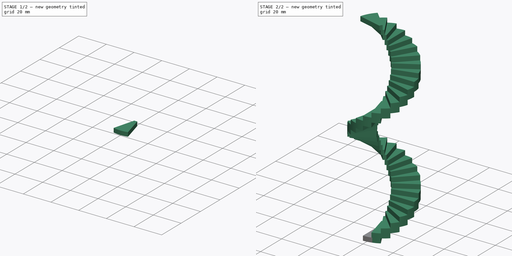
[diagram: build sequence overview — one tinted view per stage of 2, left to right]
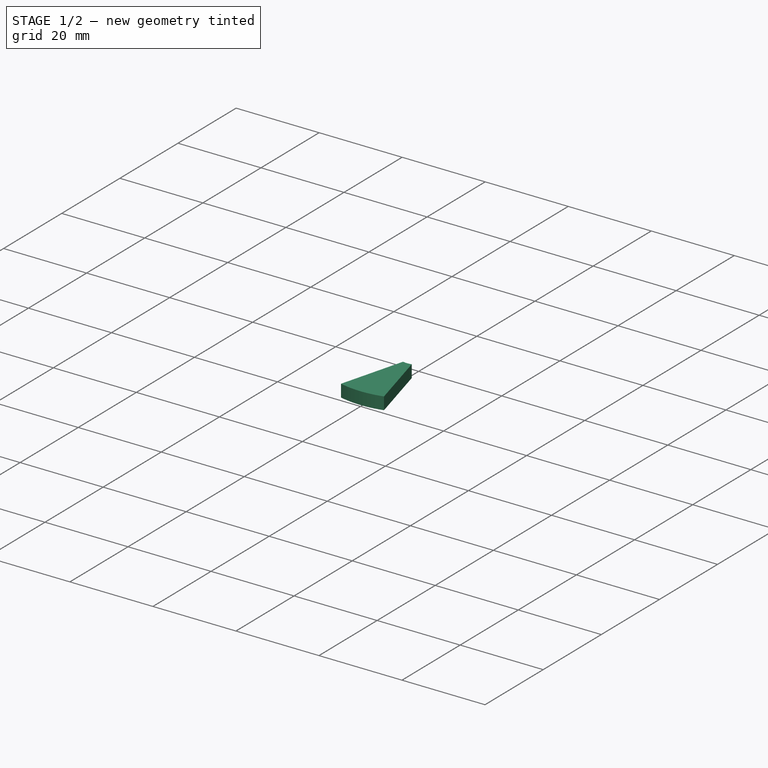
[diagram: stage 1 of 2 — iso view after this stage's code; geometry added in this stage tinted green]
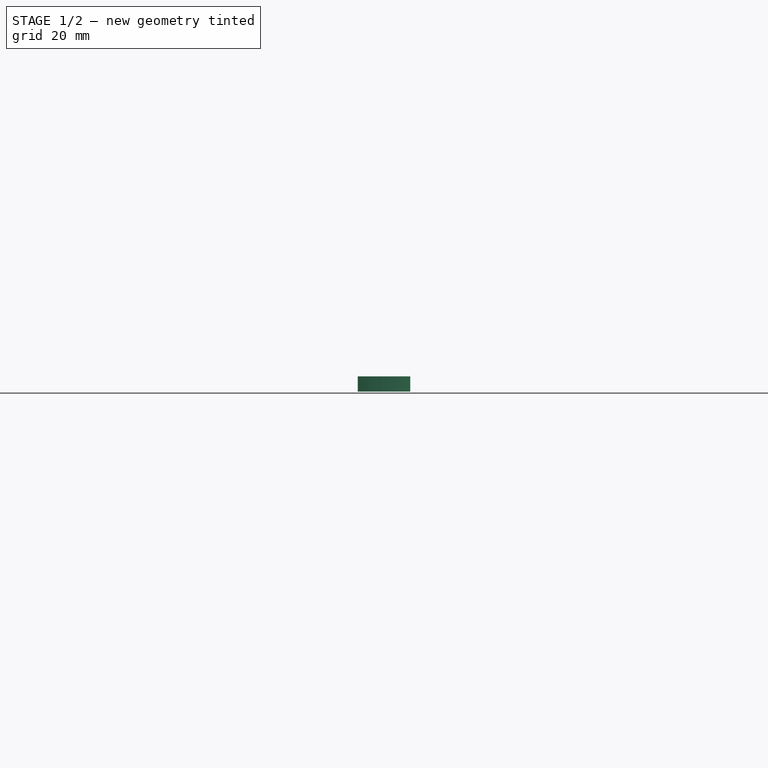
[diagram: stage 1 of 2 — front view after this stage's code; geometry added in this stage tinted green]
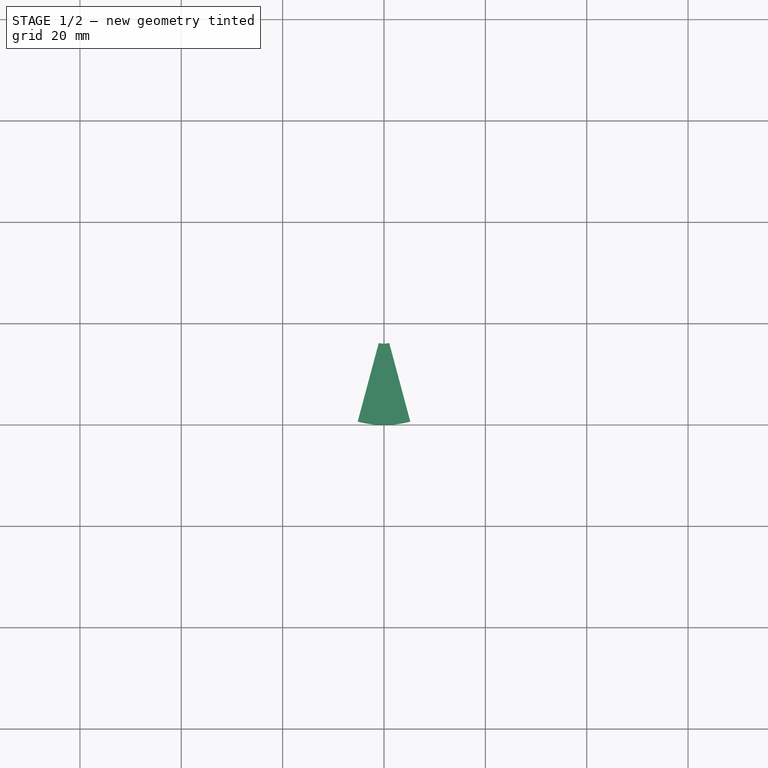
[diagram: stage 1 of 2 — top view after this stage's code; geometry added in this stage tinted green]
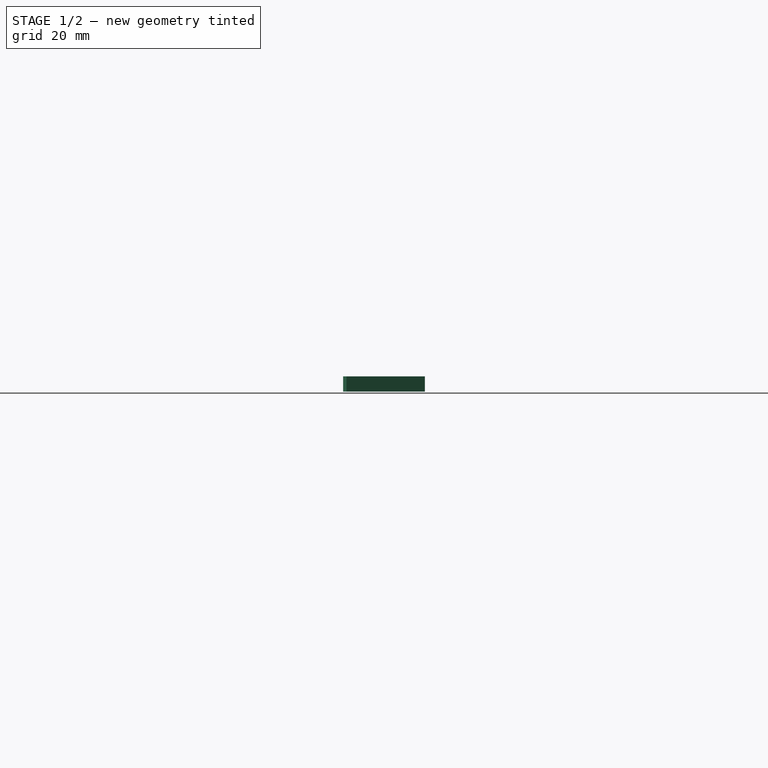
[diagram: stage 1 of 2 — right view after this stage's code; geometry added in this stage tinted green]
FCSTD DOCUMENT  (FreeCAD 0.16R6707 (Git))
Label: 01-escalera-caracol-parametrica
License: All rights reserved
LicenseURL: http://en.wikipedia.org/wiki/All_rights_reserved
objects: Sketcher::SketchObject×1, PartDesign::Pad×1, Part::FeaturePython×1, Spreadsheet::Sheet×1
note: 4 computed .brp shape members not serialized (recipe doc carries the construction recipe); baked Part::Feature solids carry a one-line shape summary decoded from their .brp

FEATURE [Sketcher::SketchObject] Sketch  label="boceto-peldaño"
  sketch-geometry (6):
    g0: LineSegment [constr] StartX=0 StartY=0 StartZ=0 EndX=-1.03528 EndY=-3.8637 EndZ=0
    g1: LineSegment [constr] StartX=1.03528 StartY=-3.8637 StartZ=0 EndX=0 EndY=0 EndZ=0
    g2: ArcOfCircle CenterX=0 CenterY=0 CenterZ=0 NormalX=0 NormalY=0 NormalZ=1 Radius=4 StartAngle=4.45059 EndAngle=4.97419
    g3: LineSegment StartX=-1.03528 StartY=-3.8637 StartZ=0 EndX=-5.17638 EndY=-19.3185 EndZ=0
    g4: LineSegment StartX=1.03528 StartY=-3.8637 StartZ=0 EndX=5.17638 EndY=-19.3185 EndZ=0
    g5: ArcOfCircle CenterX=0 CenterY=0 CenterZ=0 NormalX=0 NormalY=0 NormalZ=1 Radius=20 StartAngle=4.45059 EndAngle=4.97419
  constraints (17):
    c: Coincident(g-1,g0)
    c: Coincident(g1,g0)
    c: Equal(g0,g1)
    c: Angle(g0,g1) = 0.523599
    c: Coincident(g2,g-1)
    c: Coincident(g2,g0)
    c: Coincident(g2,g1)
    c: Coincident(g3,g0)
    c: Coincident(g4,g1)
    c: PointOnObject(g3,g0)
    c: PointOnObject(g4,g1)
    c: Coincident(g5,g-1)
    c: Coincident(g5,g3)
    c: Radius(g2) = 4
    c: Radius(g5) = 20
    c: Coincident(g4,g5)
    c: Symmetric(g3,g4,g-2)
FEATURE [PartDesign::Pad] Pad  label="Peldaño"
  Length = 3
  Length2 = 100
  Sketch = -> Sketch
  Type = 0
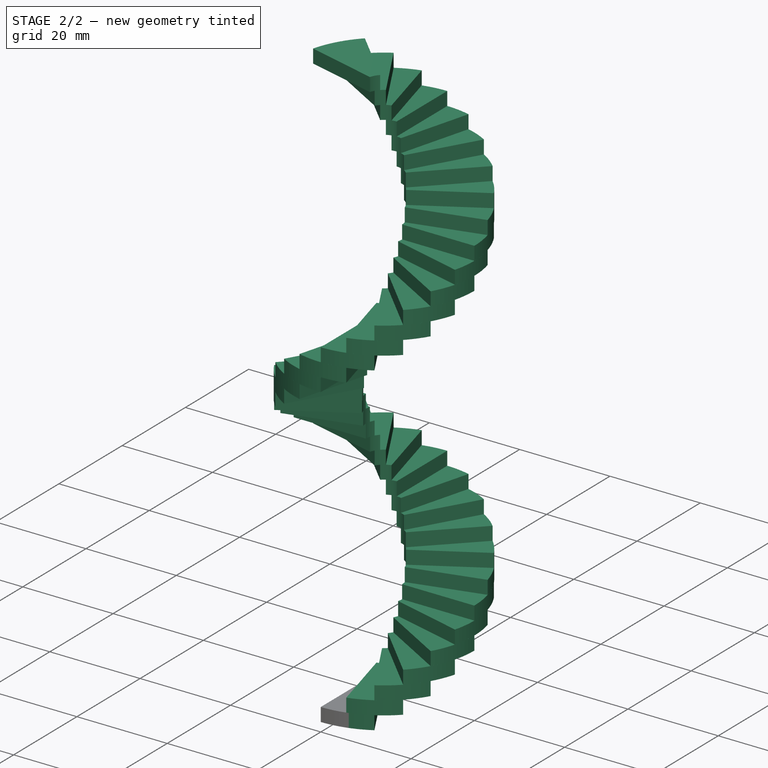
[diagram: stage 2 of 2 — iso view after this stage's code; geometry added in this stage tinted green]
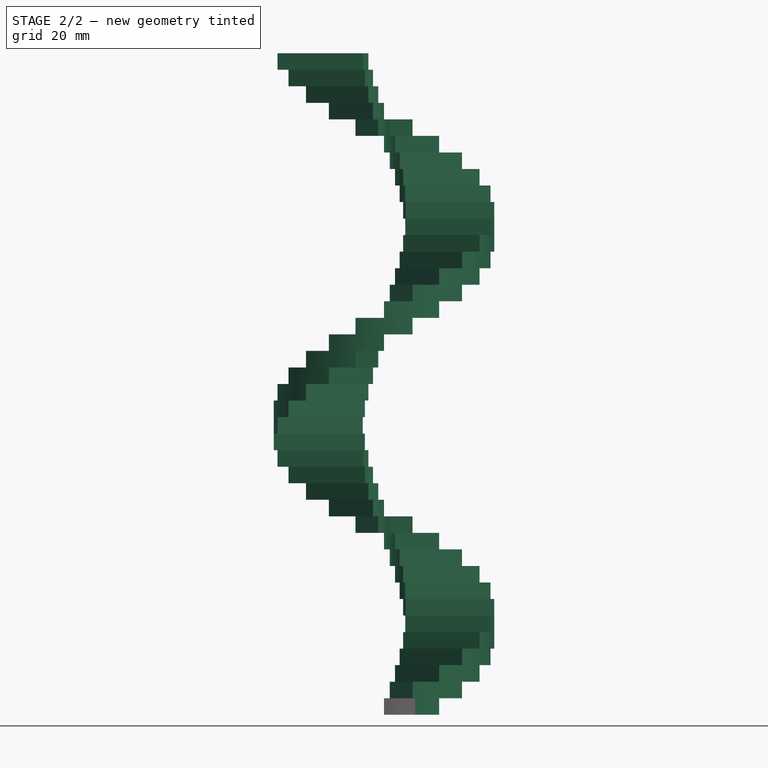
[diagram: stage 2 of 2 — front view after this stage's code; geometry added in this stage tinted green]
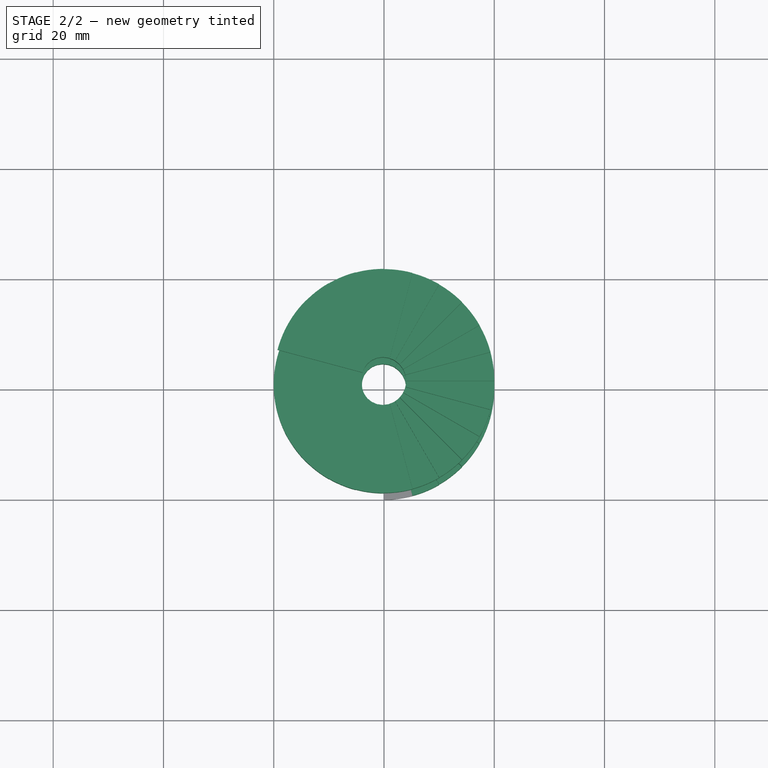
[diagram: stage 2 of 2 — top view after this stage's code; geometry added in this stage tinted green]
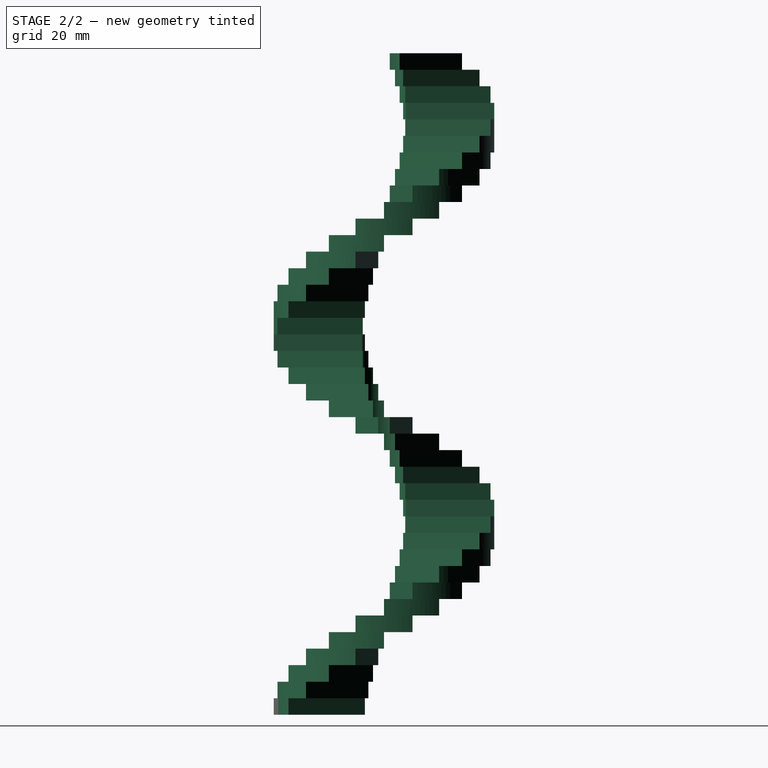
[diagram: stage 2 of 2 — right view after this stage's code; geometry added in this stage tinted green]
FEATURE [Part::FeaturePython] Array  label="Escalera-caracol"  # Draft array (typed FeaturePython)
  Angle = 585
  ArrayType = 1
  Axis = (0,0,1)
  Base = -> Pad
  Center = (0,0,0)
  Fuse = false
  IntervalAxis = (0,0,3)
  IntervalX = (1,0,0)
  IntervalY = (0,1,0)
  IntervalZ = (0,0,0)
  NumberPolar = 40
  NumberX = 2
  NumberY = 2
  NumberZ = 1
  Placement = pos=(0,0,0) rot=(0,0,1;0.261799rad)
  expr: Angle = hoja.ap * (hoja.ne - 1)
  expr: NumberPolar = hoja.ne
FEATURE [Spreadsheet::Sheet] Spreadsheet  label="hoja"
  cells = A1(ne)=40; B1=ne: numero de escalones; A2(ap)=15; B2=ap: angulo peldaño
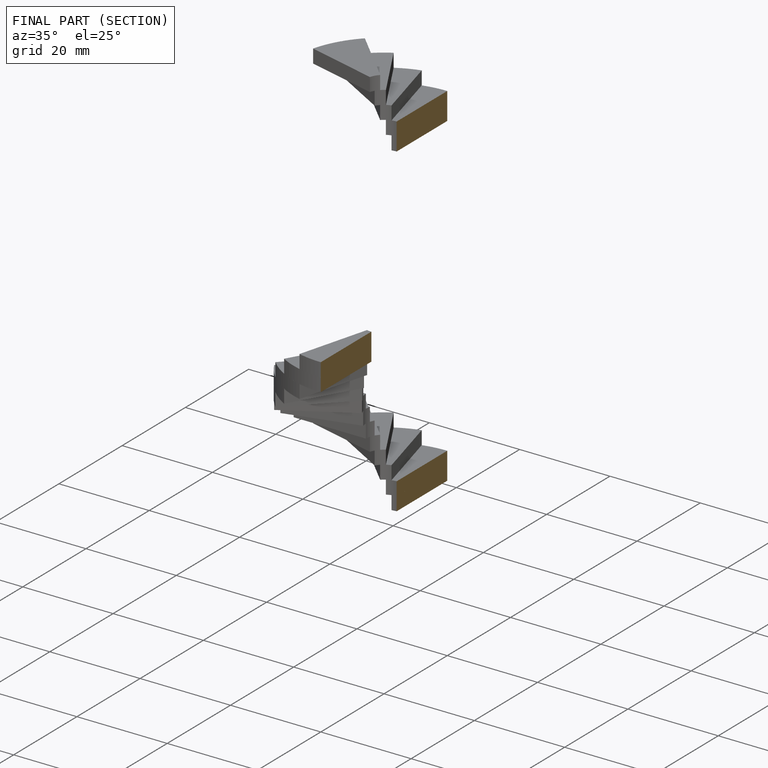
[diagram: finished part — half-section view (interior)]
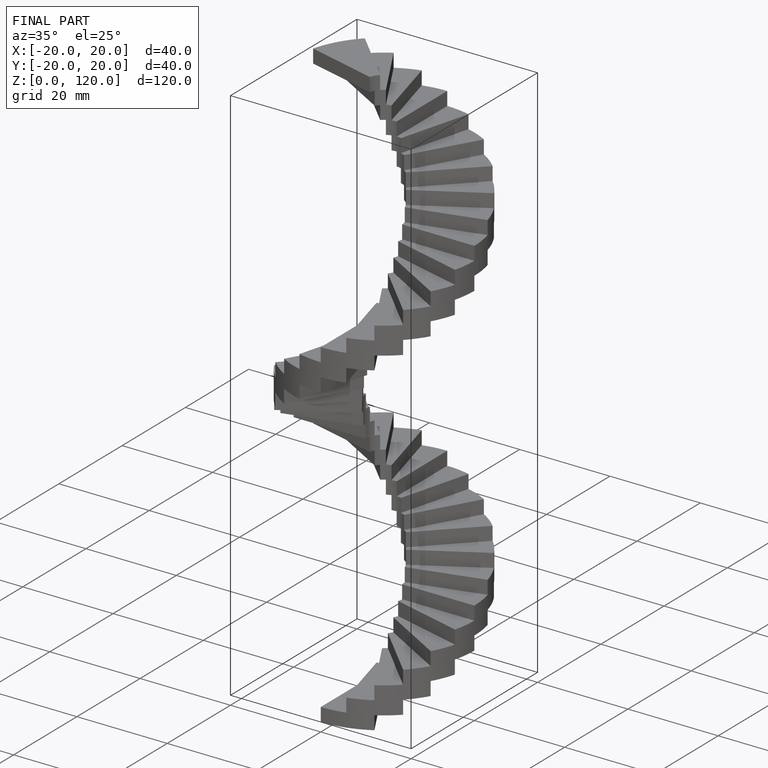
[diagram: finished part — iso view with bounding-box wireframe]
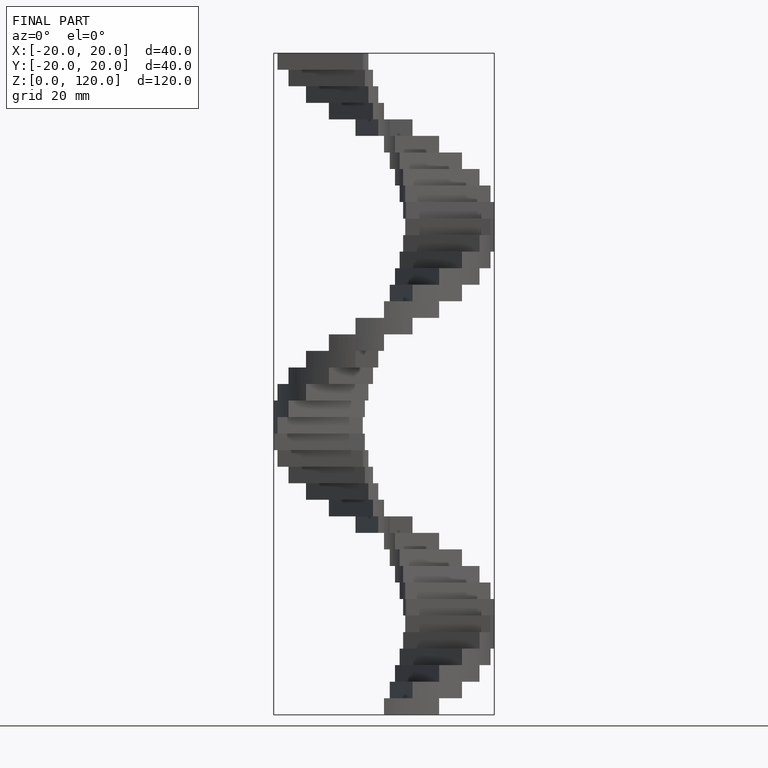
[diagram: finished part — front view with bounding-box wireframe]
